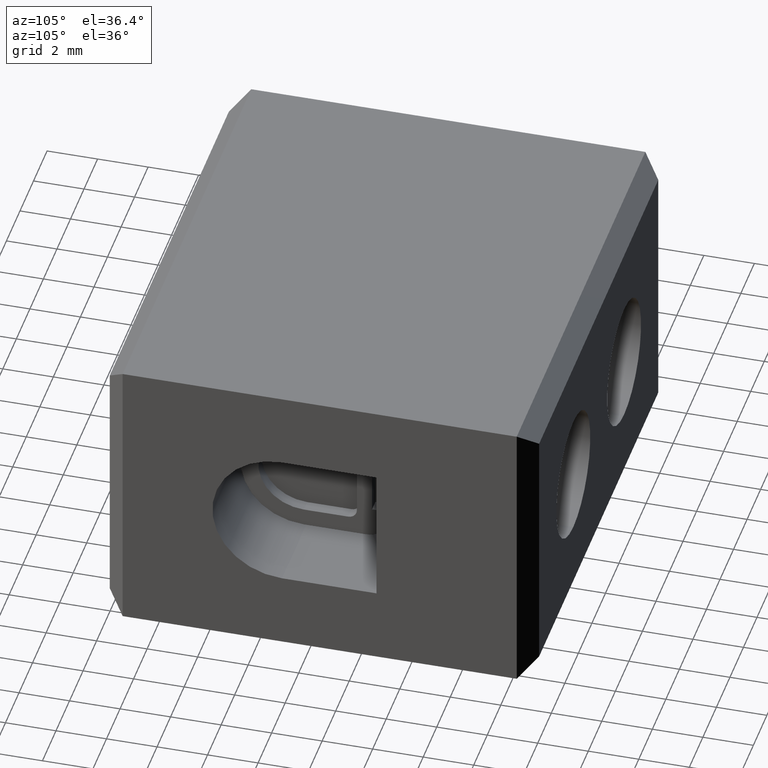
[diagram: clean part render]
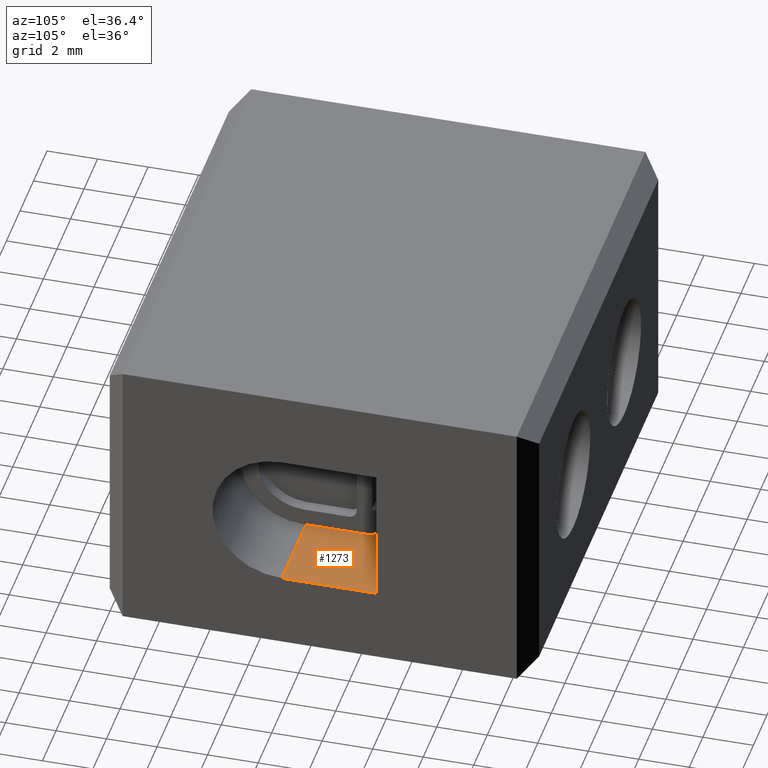
[diagram: same view with one face highlighted and labeled with its STEP entity id]
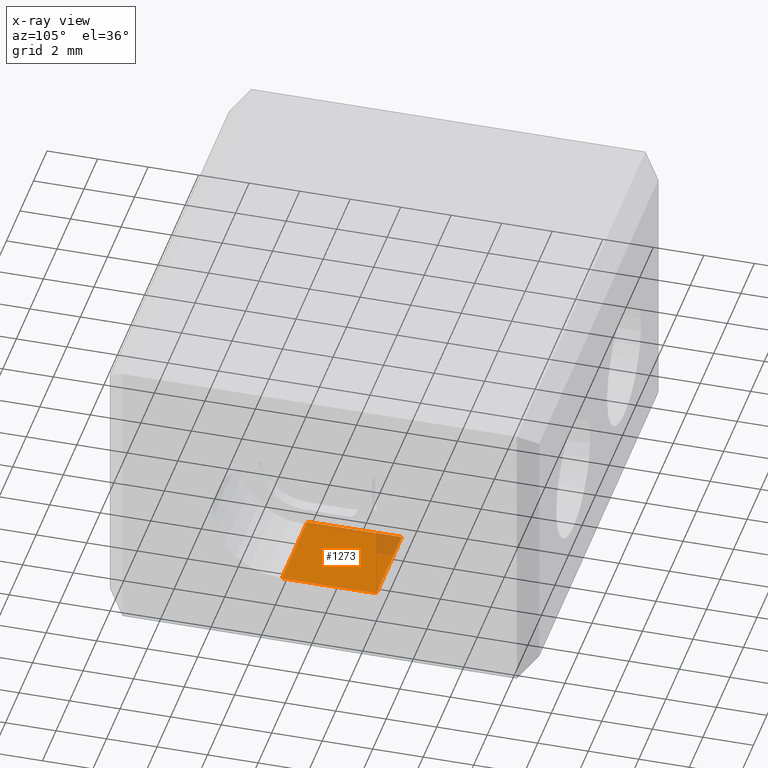
[diagram: x-ray of the same camera — body ghosted, the highlighted face saturated]
A machine part, auxiliary view. The second image highlights one B-rep face of the part: STEP entity #1273.
The next image is the same camera in x-ray: the body ghosted, the highlighted face saturated — about 8% of this face is hidden behind the body in this view.
In plain terms, the highlighted planar face has unit normal (0, -0.0002, -1).
Its self-contained STEP definition (entity closure, byte-faithful):
#120 = ORIENTED_EDGE ( 'NONE', *, *, #1101, .F. ) ;
#127 = ORIENTED_EDGE ( 'NONE', *, *, #1146, .T. ) ;
#132 = ORIENTED_EDGE ( 'NONE', *, *, #1091, .T. ) ;
#146 = ORIENTED_EDGE ( 'NONE', *, *, #1119, .T. ) ;
#403 = CARTESIAN_POINT ( 'NONE',  ( 15.00380571085094600, 7.000000000000000000, -8.249883141892539100 ) ) ;
#411 = CARTESIAN_POINT ( 'NONE',  ( 18.75380571085086200, 10.75000000000000000, -8.250655609693069400 ) ) ;
#415 = CARTESIAN_POINT ( 'NONE',  ( 18.75380571085086200, 7.000000000000000000, -8.249883141892539100 ) ) ;
#440 = CARTESIAN_POINT ( 'NONE',  ( 15.00380571150017800, 10.75000000000000000, -8.250655609693069400 ) ) ;
#660 = VERTEX_POINT ( 'NONE', #403 ) ;
#673 = VERTEX_POINT ( 'NONE', #440 ) ;
#675 = VERTEX_POINT ( 'NONE', #415 ) ;
#722 = VERTEX_POINT ( 'NONE', #411 ) ;
#733 = EDGE_LOOP ( 'NONE', ( #127, #146, #132, #120 ) ) ;
#1091 = EDGE_CURVE ( 'NONE', #722, #673, #1829, .T. ) ;
#1101 = EDGE_CURVE ( 'NONE', #660, #673, #1866, .T. ) ;
#1119 = EDGE_CURVE ( 'NONE', #675, #722, #1885, .T. ) ;
#1146 = EDGE_CURVE ( 'NONE', #660, #675, #2015, .T. ) ;
#1273 = ADVANCED_FACE ( 'NONE', ( #2490 ), #2511, .F. ) ;
#1453 = VECTOR ( 'NONE', #1858, 999.9999999999998900 ) ;
#1471 = VECTOR ( 'NONE', #1808, 1000.000000000000000 ) ;
#1479 = VECTOR ( 'NONE', #1924, 1000.000000000000000 ) ;
#1544 = VECTOR ( 'NONE', #1976, 1000.000000000000000 ) ;
#1656 = AXIS2_PLACEMENT_3D ( 'NONE', #2470, #2504, #2495 ) ;
#1804 = CARTESIAN_POINT ( 'NONE',  ( 35.80380571085090200, 10.75000000000000000, -8.250655609693069400 ) ) ;
#1808 = DIRECTION ( 'NONE',  ( -1.000000000000000000, -0.0000000000000000000, 0.0000000000000000000 ) ) ;
#1829 = LINE ( 'NONE', #1804, #1471 ) ;
#1858 = DIRECTION ( 'NONE',  ( 0.0000000000000000000, 0.9999999787837695600, -0.0002059914091044467800 ) ) ;
#1866 = LINE ( 'NONE', #1884, #1453 ) ;
#1884 = CARTESIAN_POINT ( 'NONE',  ( 15.00380571150011700, 7.000000000000000000, -8.249883141892539100 ) ) ;
#1885 = LINE ( 'NONE', #1903, #1479 ) ;
#1903 = CARTESIAN_POINT ( 'NONE',  ( 18.75380571085086200, 6.999999999999999100, -8.249883141892539100 ) ) ;
#1924 = DIRECTION ( 'NONE',  ( 0.0000000000000000000, 0.9999999787837695600, -0.0002059914091044466200 ) ) ;
#1976 = DIRECTION ( 'NONE',  ( 1.000000000000000000, 0.0000000000000000000, 0.0000000000000000000 ) ) ;
#1994 = CARTESIAN_POINT ( 'NONE',  ( 35.80380571085090200, 7.000000000000000000, -8.249883141892539100 ) ) ;
#2015 = LINE ( 'NONE', #1994, #1544 ) ;
#2470 = CARTESIAN_POINT ( 'NONE',  ( 35.80380571085090200, 7.000000000000000000, -8.249883141892539100 ) ) ;
#2490 = FACE_OUTER_BOUND ( 'NONE', #733, .T. ) ;
#2495 = DIRECTION ( 'NONE',  ( 0.0000000000000000000, 0.9999999787837695600, -0.0002059914091044467800 ) ) ;
#2504 = DIRECTION ( 'NONE',  ( 0.0000000000000000000, -0.0002059914091044467800, -0.9999999787837695600 ) ) ;
#2511 = PLANE ( 'NONE',  #1656 ) ;